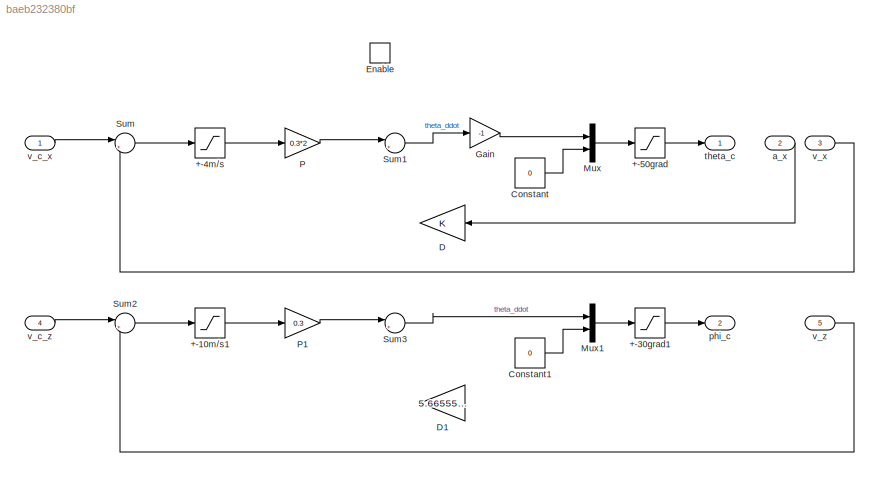
MODEL slx_baeb232380bf
KIND model
CONFIG AbsTol = auto
CONFIG EnableMultiTasking = off
CONFIG FixedStep = auto
CONFIG MaxStep = auto
CONFIG MinStep = auto
CONFIG RelTol = 1e-3
CONFIG SampleTimeConstraint = Unconstrained
CONFIG Solver = VariableStepAuto
CONFIG SolverName = VariableStepAuto
CONFIG StartTime = 0.0
CONFIG StopTime = 10.0
BLOCK [Saturate] +-10m//s1
  LowerLimit = -4
  UpperLimit = 4
BLOCK [Saturate] +-30grad1
  LowerLimit = -deg2rad(40)
  UpperLimit = deg2rad(40)
BLOCK [Saturate] +-4m//s
  LowerLimit = -4
  UpperLimit = 4
BLOCK [Saturate] +-50grad
  LowerLimit = -deg2rad(40)
  UpperLimit = deg2rad(40)
BLOCK [Constant] Constant
  Value = 0
BLOCK [Constant] Constant1
  Value = 0
BLOCK [Gain] D
  NameLocation = top
BLOCK [Gain] D1
  Gain = 5.665551201959327e+08
  NameLocation = top
BLOCK [EnablePort] Enable
  Ports = []
BLOCK [Gain] Gain
  Gain = -1
BLOCK [Mux] Mux
  DisplayOption = bar
  Inputs = 2
  Ports = [2, 1]
BLOCK [Mux] Mux1
  DisplayOption = bar
  Inputs = 2
  Ports = [2, 1]
BLOCK [Gain] P
  Gain = 0.3*2
BLOCK [Gain] P1
  Gain = 0.3
BLOCK [Sum] Sum
  Inputs = |+-
  Ports = [2, 1]
BLOCK [Sum] Sum1
  Inputs = |+-
  Ports = [2, 1]
BLOCK [Sum] Sum2
  Inputs = |+-
  Ports = [2, 1]
BLOCK [Sum] Sum3
  Inputs = |+-
  Ports = [2, 1]
BLOCK [Inport] a_x
  Port = 2
BLOCK [Outport] phi_c
  Port = 2
BLOCK [Outport] theta_c
BLOCK [Inport] v_c_x
BLOCK [Inport] v_c_z
  Port = 4
BLOCK [Inport] v_x
  Port = 3
BLOCK [Inport] v_z
  Port = 5
LINE +-10m//s1:1 -> P1:1
LINE +-30grad1:1 -> phi_c:1
LINE +-4m//s:1 -> P:1
LINE +-50grad:1 -> theta_c:1
LINE Constant1:1 -> Mux1:2
LINE Constant:1 -> Mux:2
LINE Gain:1 -> Mux:1
LINE Mux1:1 -> +-30grad1:1
LINE Mux:1 -> +-50grad:1
LINE P1:1 -> Sum3:1
LINE P:1 -> Sum1:1
LINE Sum1:1 -> Gain:1
LINE Sum2:1 -> +-10m//s1:1
LINE Sum3:1 -> Mux1:1
LINE Sum:1 -> +-4m//s:1
LINE a_x:1 -> D:1
LINE v_c_x:1 -> Sum:1
LINE v_c_z:1 -> Sum2:1
LINE v_x:1 -> Sum:2
LINE v_z:1 -> Sum2:2
